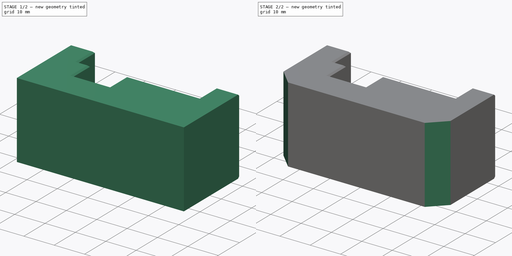
[diagram: build sequence overview — one tinted view per stage of 2, left to right]
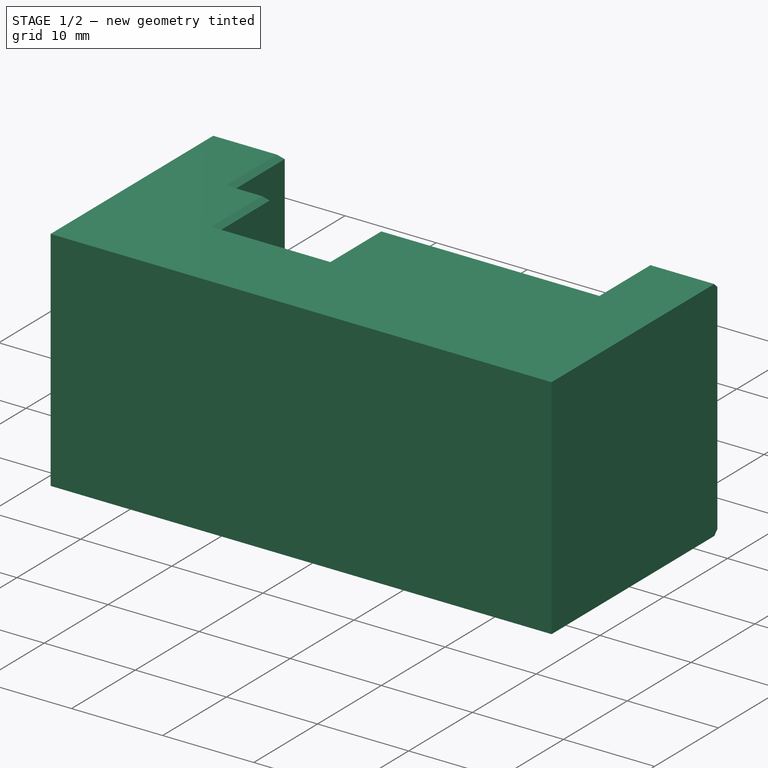
[diagram: stage 1 of 2 — iso view after this stage's code; geometry added in this stage tinted green]
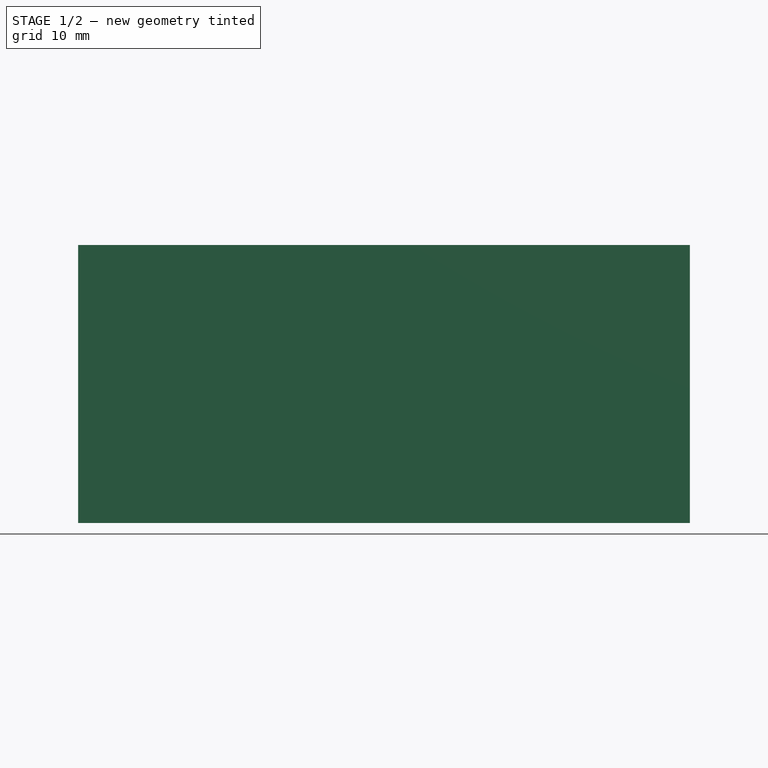
[diagram: stage 1 of 2 — front view after this stage's code; geometry added in this stage tinted green]
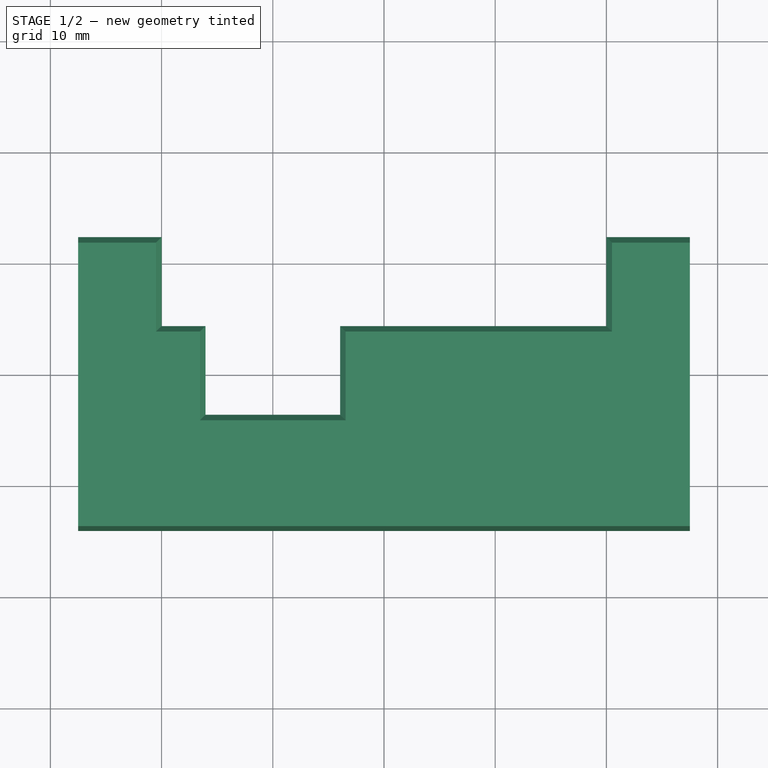
[diagram: stage 1 of 2 — top view after this stage's code; geometry added in this stage tinted green]
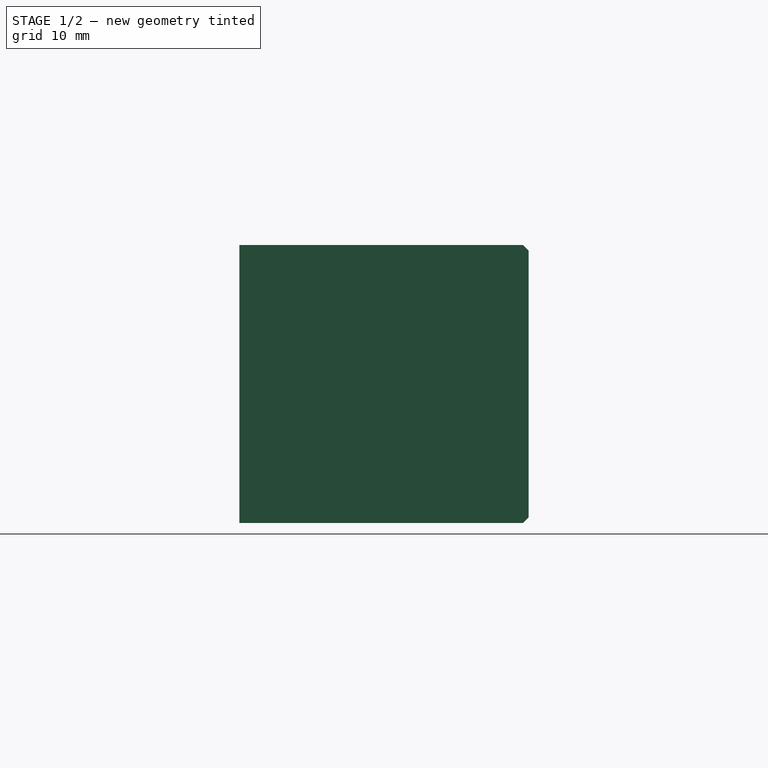
[diagram: stage 1 of 2 — right view after this stage's code; geometry added in this stage tinted green]
FCSTD DOCUMENT  (FreeCAD 0.22R35595 (Git))
Label: y axis alignment jig
License: All rights reserved
LicenseURL: http://en.wikipedia.org/wiki/All_rights_reserved
objects: Part::Feature×1, Part::Refine×1, PartDesign::FeatureBase×1, Sketcher::SketchObject×1, PartDesign::Pad×1, PartDesign::Chamfer×1, PartDesign::Body×1
note: 9 computed .brp shape members not serialized (recipe doc carries the construction recipe); baked Part::Feature solids carry a one-line shape summary decoded from their .brp

FEATURE [Part::Feature] MGN12_25mm_Block_2041_solid  label="MGN12_25mm_Block_2041 (Solid)"
  shape: bbox 55 x 21 x 25 mm, 84 faces (baked)
FEATURE [Part::Refine] MGN12_25mm_Block_2041_solid001  label="MGN12_25mm_Block_2041 (Solid)001"
  Source = -> MGN12_25mm_Block_2041_solid
FEATURE [PartDesign::FeatureBase] BaseFeature
  BaseFeature = -> MGN12_25mm_Block_2041_solid001
FEATURE [Sketcher::SketchObject] Sketch
  ExternalGeometry = -> [BaseFeature]
  FullyConstrained = true
  MapMode = 5
  Placement = pos=(0,-9.0125,0) rot=(1,0,0;1.5708rad)
  Support = -> [BaseFeature]
  sketch-geometry (4):
    g0: LineSegment StartX=-17.5 StartY=25 StartZ=0 EndX=-17.5 EndY=0 EndZ=0
    g1: LineSegment StartX=-17.5 StartY=0 StartZ=0 EndX=37.5 EndY=0 EndZ=0
    g2: LineSegment StartX=37.5 StartY=0 StartZ=0 EndX=37.5 EndY=25 EndZ=0
    g3: LineSegment StartX=37.5 StartY=25 StartZ=0 EndX=-17.5 EndY=25 EndZ=0
  constraints (10):
    c: Coincident(g0,g1)
    c: Coincident(g1,g2)
    c: Coincident(g2,g3)
    c: Coincident(g3,g0)
    c: Vertical(g0)
    c: Vertical(g2)
    c: Horizontal(g1)
    c: Horizontal(g3)
    c: Coincident(g0,g-4)
    c: Coincident(g1,g-3)
FEATURE [PartDesign::Pad] Pad
  BaseFeature = -> BaseFeature
  Direction = (0,-1,2e-16)
  Length = 5
  Length2 = 10
  Profile = -> Sketch
  ReferenceAxis = -> Sketch [N_Axis]
  Type = 0
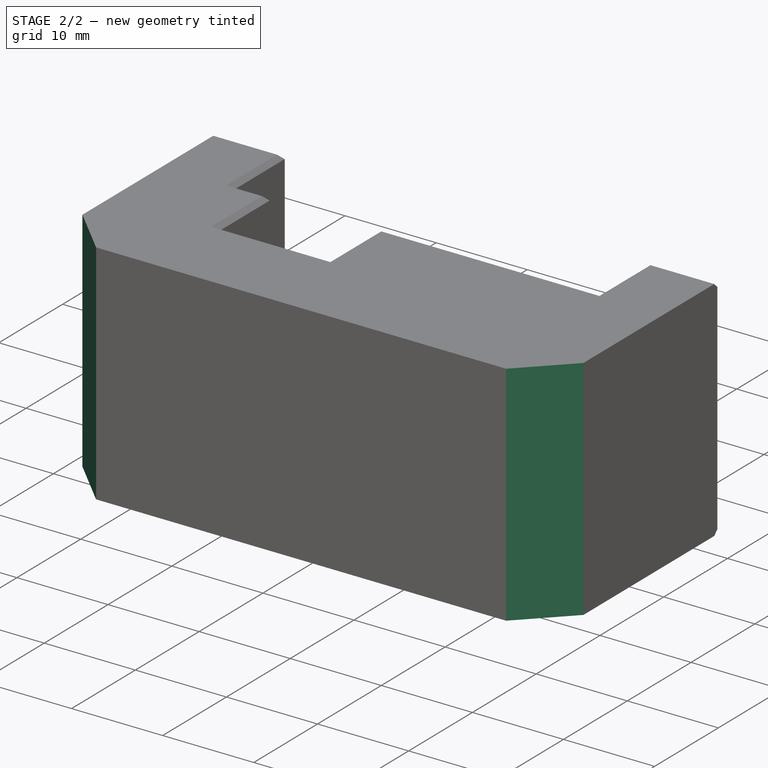
[diagram: stage 2 of 2 — iso view after this stage's code; geometry added in this stage tinted green]
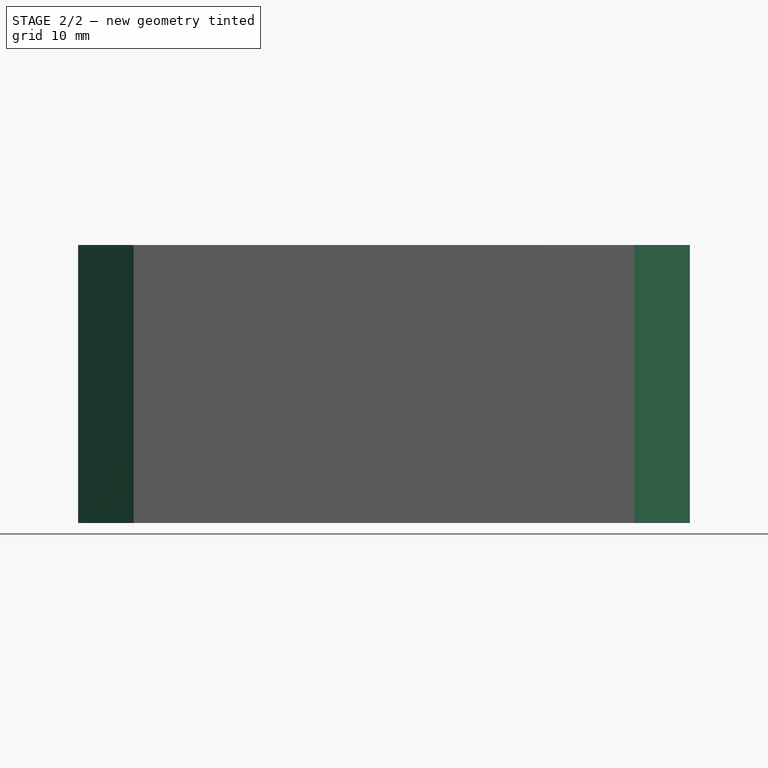
[diagram: stage 2 of 2 — front view after this stage's code; geometry added in this stage tinted green]
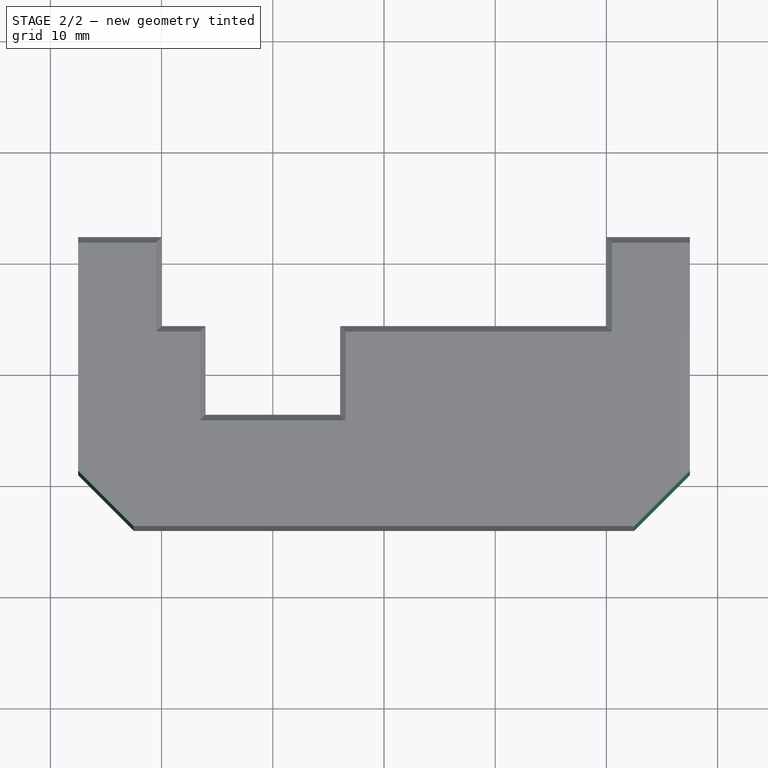
[diagram: stage 2 of 2 — top view after this stage's code; geometry added in this stage tinted green]
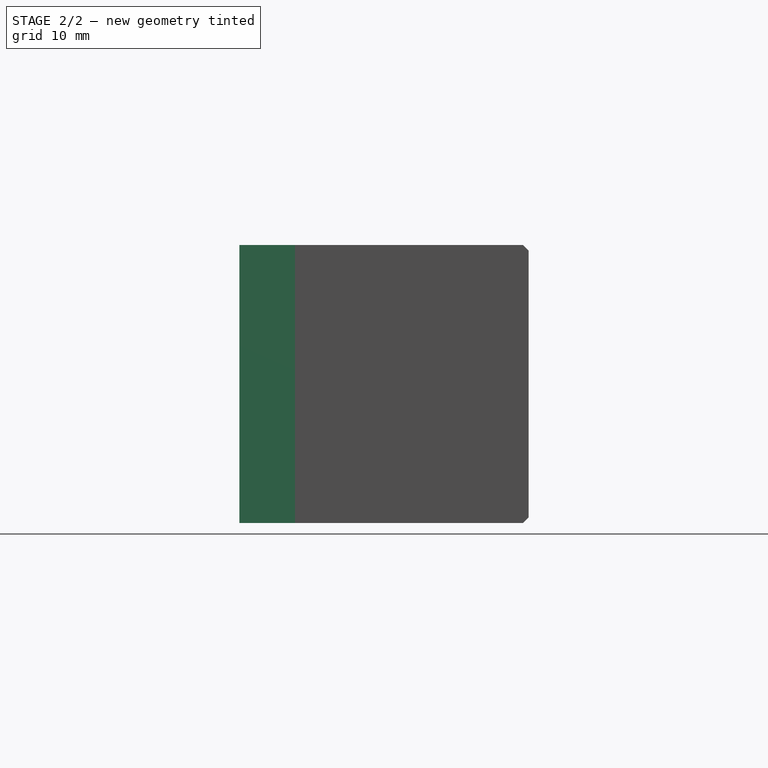
[diagram: stage 2 of 2 — right view after this stage's code; geometry added in this stage tinted green]
FEATURE [PartDesign::Chamfer] Chamfer
  Angle = 45
  Base = -> Pad [Edge62,Edge26]
  BaseFeature = -> Pad
  ChamferType = 0
  FlipDirection = false
  Size = 4.995
  Size2 = 1
  SupportTransform = false
  UseAllEdges = false
FEATURE [PartDesign::Body] Body
  BaseFeature = -> MGN12_25mm_Block_2041_solid001
  Group = -> [BaseFeature,Sketch,Pad,Chamfer]
  Origin = -> Origin
  Tip = -> Chamfer
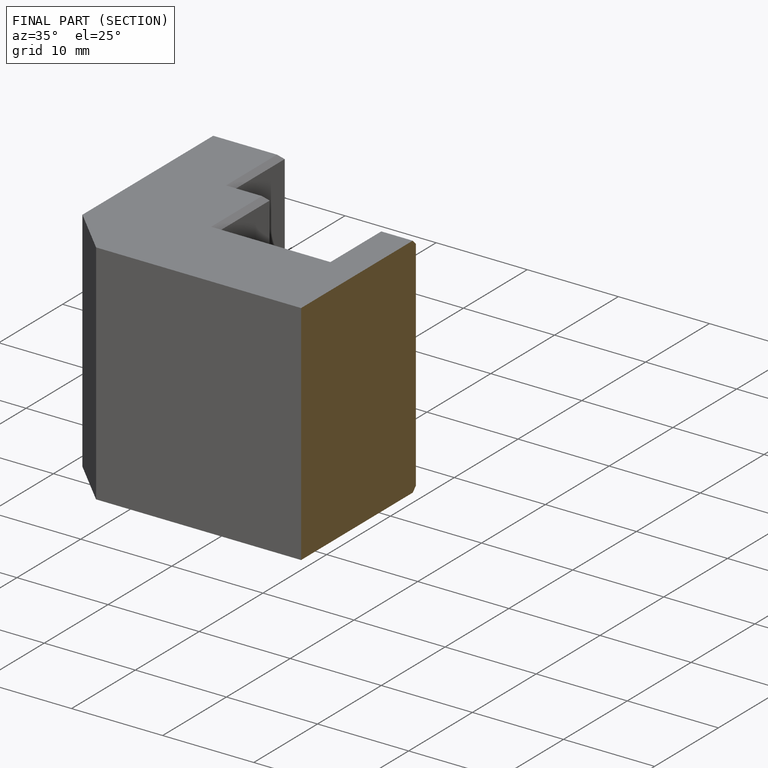
[diagram: finished part — half-section view (interior)]
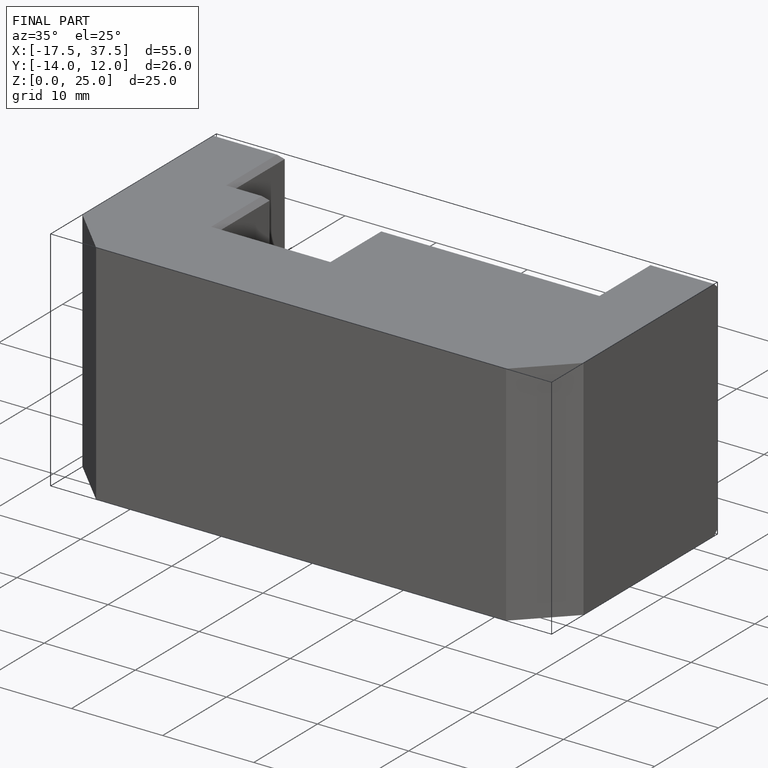
[diagram: finished part — iso view with bounding-box wireframe]
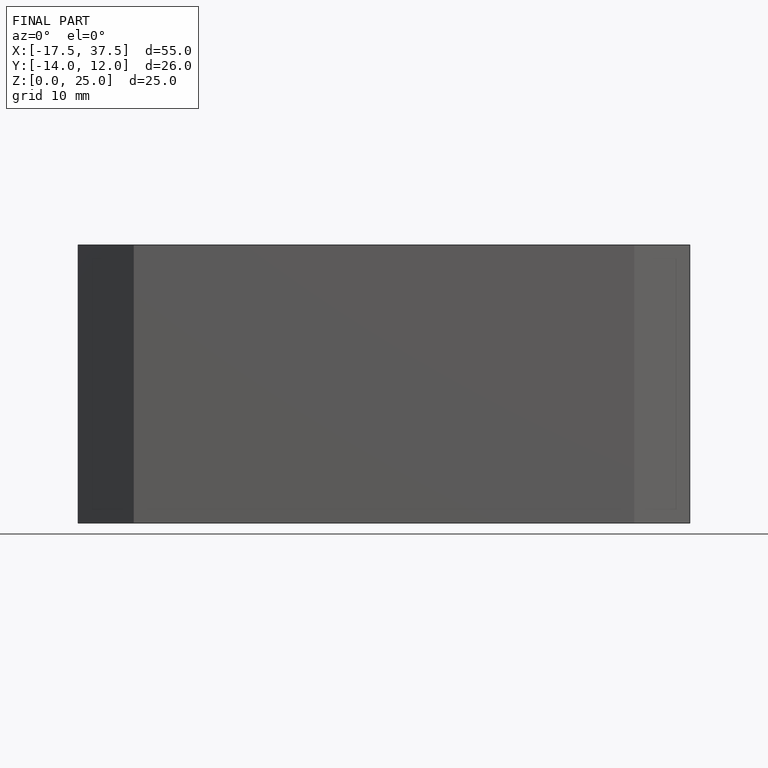
[diagram: finished part — front view with bounding-box wireframe]
